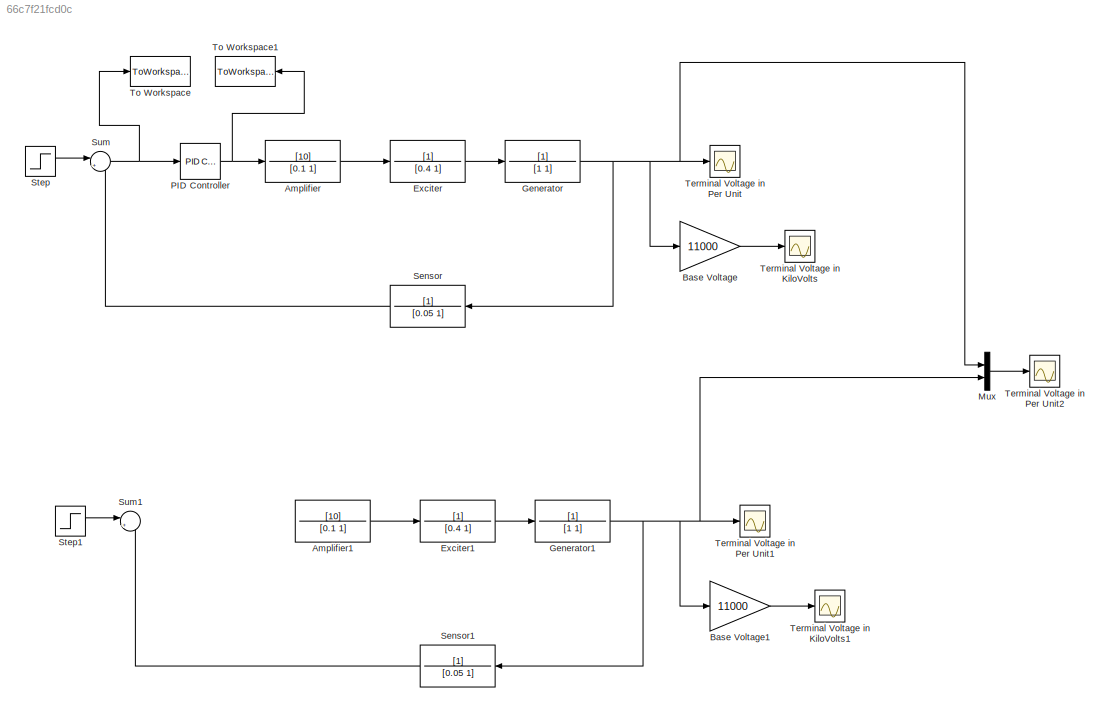
MODEL slx_66c7f21fcd0c
KIND model
CONFIG AbsTol = auto
CONFIG EnableMultiTasking = off
CONFIG FixedStep = auto
CONFIG MaxStep = auto
CONFIG MinStep = auto
CONFIG RelTol = 1e-3
CONFIG SampleTimeConstraint = Unconstrained
CONFIG Solver = VariableStepAuto
CONFIG SolverName = VariableStepAuto
CONFIG StartTime = 0.0
CONFIG StopTime = 50
BLOCK [TransferFcn] Amplifier
  Denominator = [0.1 1]
  Numerator = [10]
BLOCK [TransferFcn] Amplifier1
  Denominator = [0.1 1]
  Numerator = [10]
BLOCK [Gain] Base Voltage
  Gain = 11000
  OutDataTypeStr = Inherit: Inherit via internal rule
  ParamDataTypeStr = Inherit: Inherit via internal rule
  SaturateOnIntegerOverflow = off
BLOCK [Gain] Base Voltage1
  Gain = 11000
  OutDataTypeStr = Inherit: Inherit via internal rule
  ParamDataTypeStr = Inherit: Inherit via internal rule
  SaturateOnIntegerOverflow = off
BLOCK [TransferFcn] Exciter
  Denominator = [0.4 1]
BLOCK [TransferFcn] Exciter1
  Denominator = [0.4 1]
BLOCK [TransferFcn] Generator
  Denominator = [1 1]
BLOCK [TransferFcn] Generator1
  Denominator = [1 1]
BLOCK [Mux] Mux
  DisplayOption = bar
  Inputs = 2
  Ports = [2, 1]
BLOCK [Reference] PID Controller  REF=simulink/Continuous/PID Controller
  Ports = [1, 1]
  SourceBlock = simulink/Continuous/PID Controller
  SourceProductBaseCode = SL
  SourceProductName = Simulink
  SourceType = PID 1dof
BLOCK [TransferFcn] Sensor
  Denominator = [0.05 1]
BLOCK [TransferFcn] Sensor1
  Denominator = [0.05 1]
BLOCK [Step] Step
  Before = 1
  SampleTime = 0
  Time = 20
BLOCK [Step] Step1
  Before = 1
  SampleTime = 0
  Time = 20
BLOCK [Sum] Sum
  IconShape = round
  InputSameDT = off
  Inputs = |+-
  OutDataTypeStr = Inherit: Inherit via internal rule
  Ports = [2, 1]
  SaturateOnIntegerOverflow = off
BLOCK [Sum] Sum1
  IconShape = round
  InputSameDT = off
  Inputs = |+-
  OutDataTypeStr = Inherit: Inherit via internal rule
  Ports = [2, 1]
  SaturateOnIntegerOverflow = off
BLOCK [Scope] Terminal Voltage in KiloVolts
  Floating = off
  NumInputPorts = 1
  Ports = [1]
  ScopeSpecificationString = Simulink.scopes.TimeScopeBlockCfg('CurrentConfiguration', extmgr.ConfigurationSet(extmgr.Configuration('Core','General UI',true),extmgr.Configuration('Core','Source UI',true),extmgr.Configuration('Sources','WiredSimulink',true,'DataLoggingVariableName','ScopeData1'),extmgr.Configuration('Visuals','Time Domain',true,'SerializedDisplays',{struct('MinYLimReal','-1802.80581','MaxYLimReal','16225.25227...<+1424ch>
BLOCK [Scope] Terminal Voltage in KiloVolts1
  Floating = off
  NumInputPorts = 1
  Ports = [1]
  ScopeSpecificationString = Simulink.scopes.TimeScopeBlockCfg('CurrentConfiguration', extmgr.ConfigurationSet(extmgr.Configuration('Core','General UI',true),extmgr.Configuration('Core','Source UI',true),extmgr.Configuration('Sources','WiredSimulink',true,'DataLoggingVariableName','ScopeData2'),extmgr.Configuration('Visuals','Time Domain',true,'SerializedDisplays',{struct('MinYLimReal','-1802.06755','MaxYLimReal','16218.60792...<+1424ch>
BLOCK [Scope] Terminal Voltage in Per Unit
  Floating = off
  NumInputPorts = 1
  Ports = [1]
  ScopeSpecificationString = Simulink.scopes.TimeScopeBlockCfg('CurrentConfiguration', extmgr.ConfigurationSet(extmgr.Configuration('Core','General UI',true),extmgr.Configuration('Core','Source UI',true),extmgr.Configuration('Sources','WiredSimulink',true),extmgr.Configuration('Visuals','Time Domain',true,'SerializedDisplays',{struct('MinYLimReal','-0.16389','MaxYLimReal','1.47502','YLabelReal','','MinYLimMag','0.00000','MaxY...<+1356ch>
BLOCK [Scope] Terminal Voltage in Per Unit1
  Floating = off
  NumInputPorts = 1
  Ports = [1]
  ScopeSpecificationString = Simulink.scopes.TimeScopeBlockCfg('CurrentConfiguration', extmgr.ConfigurationSet(extmgr.Configuration('Core','General UI',true),extmgr.Configuration('Core','Source UI',true),extmgr.Configuration('Sources','WiredSimulink',true,'DataLoggingVariableName','ScopeData3'),extmgr.Configuration('Visuals','Time Domain',true,'SerializedDisplays',{struct('MinYLimReal','-10.07349','MaxYLimReal','85.00215','YL...<+1402ch>
BLOCK [Scope] Terminal Voltage in Per Unit2
  Floating = off
  NumInputPorts = 1
  Ports = [1]
  ScopeSpecificationString = Simulink.scopes.TimeScopeBlockCfg('CurrentConfiguration', extmgr.ConfigurationSet(extmgr.Configuration('Core','General UI',true),extmgr.Configuration('Core','Source UI',true),extmgr.Configuration('Sources','WiredSimulink',true,'DataLoggingVariableName','ScopeData4'),extmgr.Configuration('Visuals','Time Domain',true,'SerializedDisplays',{struct('MinYLimReal','0.62675','MaxYLimReal','1.04067','YLabe...<+1475ch>
BLOCK [ToWorkspace] To Workspace
  FixptAsFi = on
  MaxDataPoints = inf
  Ports = [1]
  SampleTime = -1
  Save2DSignal = 3-D array (concatenate along third dimension)
  VariableName = input
BLOCK [ToWorkspace] To Workspace1
  FixptAsFi = on
  MaxDataPoints = inf
  Ports = [1]
  SampleTime = -1
  Save2DSignal = 3-D array (concatenate along third dimension)
  VariableName = output
LINE Amplifier1:1 -> Exciter1:1
LINE Amplifier:1 -> Exciter:1
LINE Base Voltage1:1 -> Terminal Voltage in KiloVolts1:1
LINE Base Voltage:1 -> Terminal Voltage in KiloVolts:1
LINE Exciter1:1 -> Generator1:1
LINE Exciter:1 -> Generator:1
NET Generator1:1 -> Base Voltage1:1, Mux:2, Sensor1:1, Terminal Voltage in Per Unit1:1
NET Generator:1 -> Base Voltage:1, Mux:1, Sensor:1, Terminal Voltage in Per Unit:1
LINE Mux:1 -> Terminal Voltage in Per Unit2:1
NET PID Controller:1 -> Amplifier:1, To Workspace1:1
LINE Sensor1:1 -> Sum1:2
LINE Sensor:1 -> Sum:2
LINE Step1:1 -> Sum1:1
LINE Step:1 -> Sum:1
NET Sum:1 -> PID Controller:1, To Workspace:1
note: NET lines group one-source signal fan-out (src -> all destinations, sorted); 1:1 wires keep LINE
